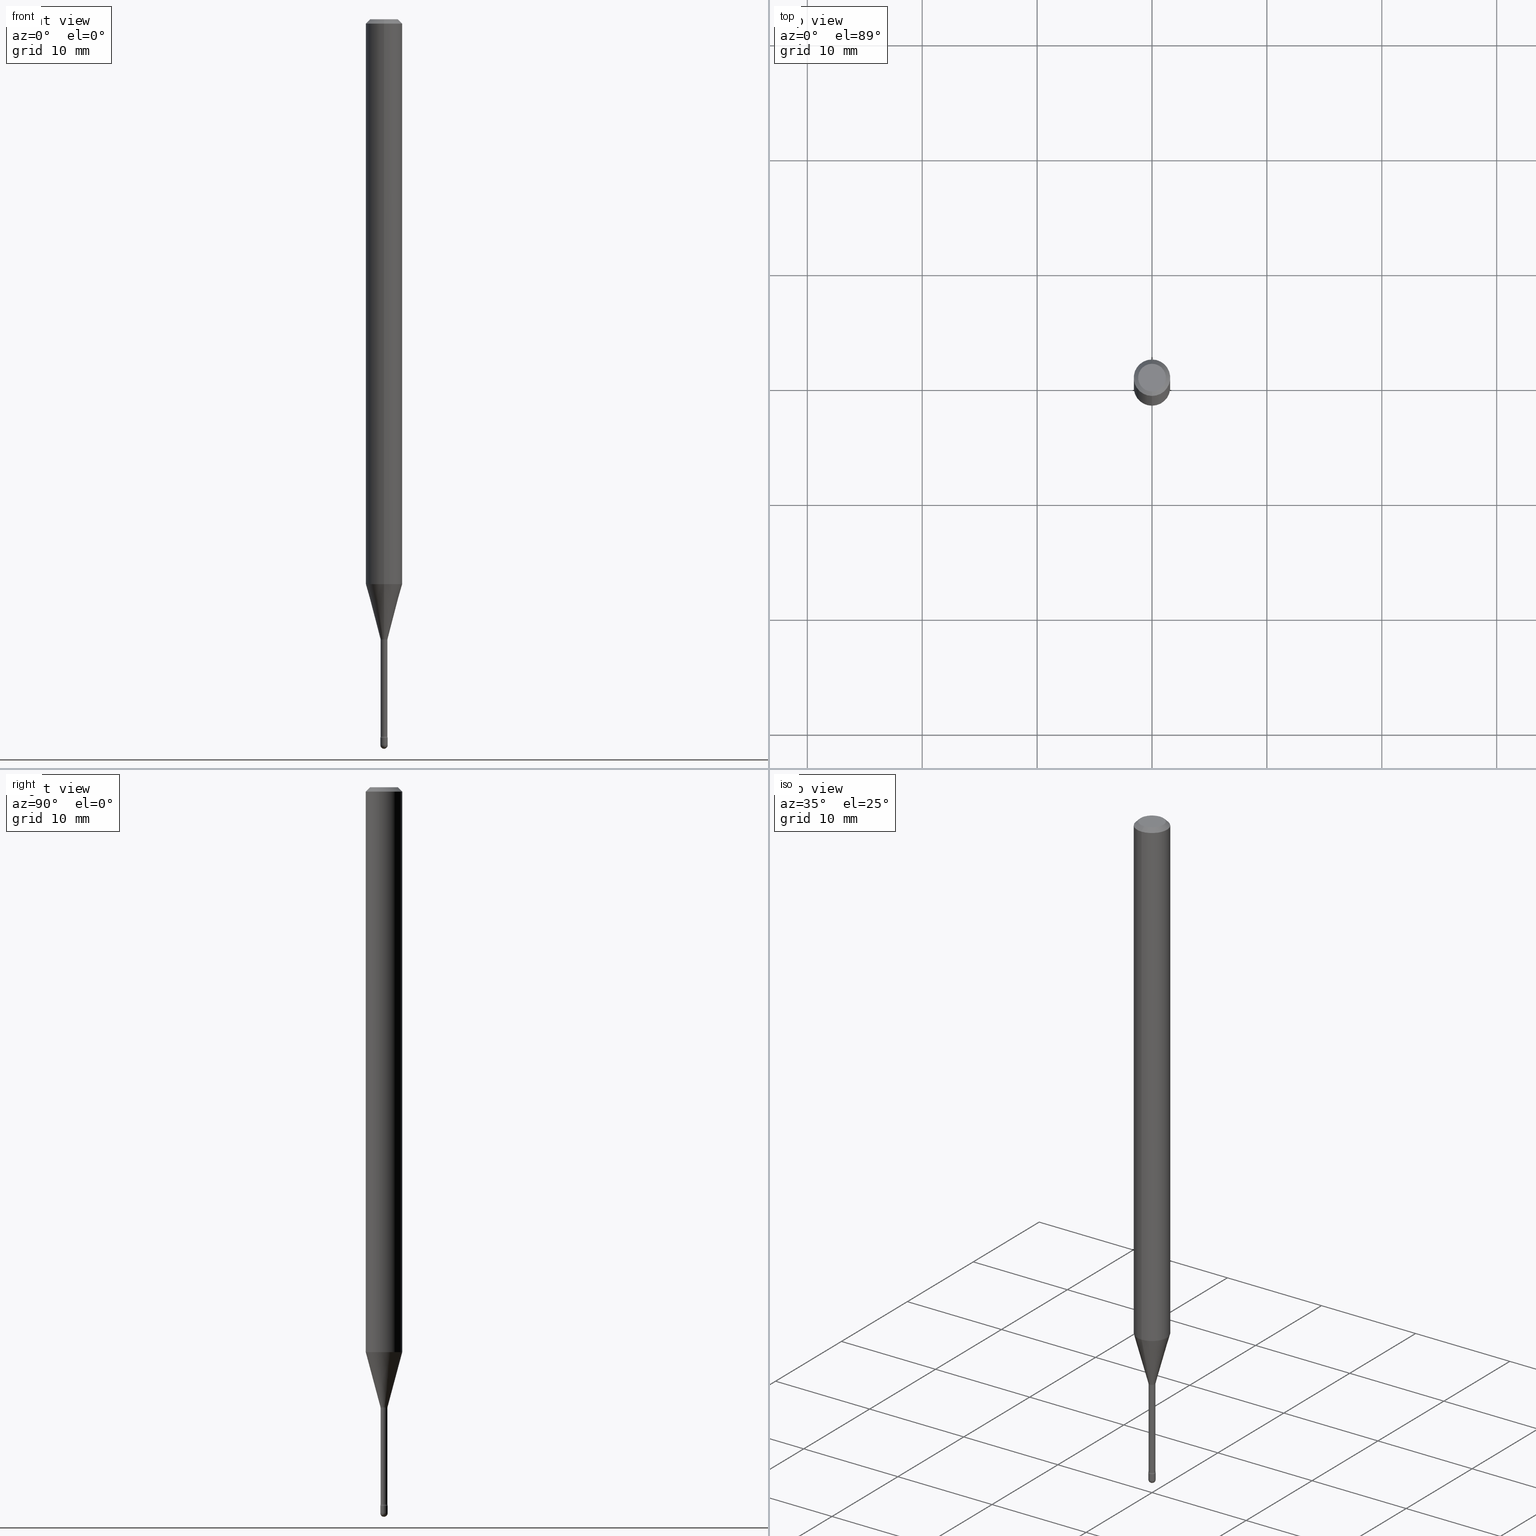
[diagram: canonical four-view strip — front | top / right | iso, engineering-drawing reading convention]
A machine part, canonical four-view strip (front | top / right | iso — engineering-drawing reading convention). The complete STEP part file that produces these views, byte-faithful:
ISO-10303-21;
HEADER;
FILE_DESCRIPTION (( 'STEP AP203' ),
    '1' );
FILE_NAME ('03916.STEP',
    '2024-04-09T21:09:01',
    ( '' ),
    ( '' ),
    'SwSTEP 2.0',
    'SolidWorks 2023',
    '' );
FILE_SCHEMA (( 'CONFIG_CONTROL_DESIGN' ));
ENDSEC;

DATA;
#1 =( NAMED_UNIT ( * ) PLANE_ANGLE_UNIT ( ) SI_UNIT ( $, .RADIAN. ) );
#2 = CARTESIAN_POINT ( 'NONE',  ( 1.900701818158871685E-16, 0.02674999999999146463, -2.457316251501201698 ) ) ;
#3 = EDGE_CURVE ( 'NONE', #254, #80, #475, .T. ) ;
#4 = CARTESIAN_POINT ( 'NONE',  ( 0.000000000000000000, 0.000000000000000000, 0.000000000000000000 ) ) ;
#5 = AXIS2_PLACEMENT_3D ( 'NONE', #447, #50, #501 ) ;
#6 = CARTESIAN_POINT ( 'NONE',  ( -3.773273898774340269E-16, -0.04749999999999999362, 8.310702070232110392E-17 ) ) ;
#7 = DIRECTION ( 'NONE',  ( -2.445404936488947864E-29, 3.491572803883325128E-15, 1.000000000000000000 ) ) ;
#8 = ORIENTED_EDGE ( 'NONE', *, *, #396, .F. ) ;
#9 = APPROVAL_DATE_TIME ( #93, #277 ) ;
#10 = ADVANCED_FACE ( 'NONE', ( #258 ), #30, .T. ) ;
#11 = PLANE ( 'NONE',  #5 ) ;
#12 = CLOSED_SHELL ( 'NONE', ( #496, #412, #186, #60, #403, #81, #125, #10, #529, #504, #343, #143, #363, #312 ) ) ;
#13 = AXIS2_PLACEMENT_3D ( 'NONE', #173, #39, #370 ) ;
#14 = VERTEX_POINT ( 'NONE', #348 ) ;
#15 = AXIS2_PLACEMENT_3D ( 'NONE', #176, #483, #397 ) ;
#16 = DIRECTION ( 'NONE',  ( -2.445404936488947864E-29, 3.491572803883325128E-15, 1.000000000000000000 ) ) ;
#17 = ORIENTED_EDGE ( 'NONE', *, *, #108, .T. ) ;
#18 = SPHERICAL_SURFACE ( 'NONE', #367, 0.01249999999999996947 ) ;
#19 = ORIENTED_EDGE ( 'NONE', *, *, #440, .F. ) ;
#20 = EDGE_CURVE ( 'NONE', #405, #14, #300, .T. ) ;
#21 = DIRECTION ( 'NONE',  ( 1.000000000000000000, -6.982962677686294321E-15, 0.000000000000000000 ) ) ;
#22 = ORIENTED_EDGE ( 'NONE', *, *, #555, .T. ) ;
#23 = AXIS2_PLACEMENT_3D ( 'NONE', #79, #416, #21 ) ;
#24 = DIRECTION ( 'NONE',  ( -2.445468806185136597E-29, 3.491481338843145583E-15, 1.000000000000000000 ) ) ;
#25 = VERTEX_POINT ( 'NONE', #208 ) ;
#26 = CARTESIAN_POINT ( 'NONE',  ( 0.01250000000000000243, -8.727830476773153796E-15, -2.487500000000000266 ) ) ;
#27 = ORIENTED_EDGE ( 'NONE', *, *, #187, .F. ) ;
#28 = DIRECTION ( 'NONE',  ( -2.445404936488947864E-29, 3.491572803883325128E-15, 1.000000000000000000 ) ) ;
#29 = EDGE_CURVE ( 'NONE', #405, #150, #128, .T. ) ;
#30 = CYLINDRICAL_SURFACE ( 'NONE', #264, 0.06250000000000000000 ) ;
#31 = CIRCLE ( 'NONE', #509, 0.01500000000000002373 ) ;
#32 = APPROVAL_PERSON_ORGANIZATION ( #274, #277, #493 ) ;
#33 = CARTESIAN_POINT ( 'NONE',  ( -0.01250000000000000243, -8.551725601332063255E-15, -2.487500000000000266 ) ) ;
#34 = ORIENTED_EDGE ( 'NONE', *, *, #396, .T. ) ;
#35 = PERSON_AND_ORGANIZATION_ROLE ( 'design_owner' ) ;
#36 = CARTESIAN_POINT ( 'NONE',  ( -1.867942516280478556E-16, -0.02675000000000862452, -2.457316251501201698 ) ) ;
#37 = EDGE_CURVE ( 'NONE', #490, #425, #199, .T. ) ;
#38 = CALENDAR_DATE ( 2024, 9, 4 ) ;
#39 = DIRECTION ( 'NONE',  ( -2.445468806185136597E-29, 3.491481338843145583E-15, 1.000000000000000000 ) ) ;
#40 = CONICAL_SURFACE ( 'NONE', #357, 0.01226111260566398534, 0.2617993877991499074 ) ;
#41 = AXIS2_PLACEMENT_3D ( 'NONE', #148, #59, #319 ) ;
#42 = CALENDAR_DATE ( 2024, 9, 4 ) ;
#43 = CIRCLE ( 'NONE', #15, 0.06250000000000000000 ) ;
#44 = FACE_OUTER_BOUND ( 'NONE', #346, .T. ) ;
#45 = DIRECTION ( 'NONE',  ( -6.982962677686266711E-15, -1.000000000000000000, 3.491572803883325128E-15 ) ) ;
#46 = DIRECTION ( 'NONE',  ( 1.000000000000000000, -6.982962677686267499E-15, 4.876176775795936353E-29 ) ) ;
#47 = AXIS2_PLACEMENT_3D ( 'NONE', #383, #470, #252 ) ;
#48 = DIRECTION ( 'NONE',  ( -6.982962677686265922E-15, -1.000000000000000000, 0.000000000000000000 ) ) ;
#49 = ORIENTED_EDGE ( 'NONE', *, *, #269, .F. ) ;
#50 = DIRECTION ( 'NONE',  ( -2.445404936488947583E-29, 3.491572803883325128E-15, 1.000000000000000000 ) ) ;
#51 = ORIENTED_EDGE ( 'NONE', *, *, #332, .T. ) ;
#52 = CC_DESIGN_DATE_AND_TIME_ASSIGNMENT ( #222, #349, ( #328 ) ) ;
#53 = ORIENTED_EDGE ( 'NONE', *, *, #29, .F. ) ;
#54 = CARTESIAN_POINT ( 'NONE',  ( -0.01250000000000000069, -8.551725601332063255E-15, -2.462000000000000188 ) ) ;
#55 = VECTOR ( 'NONE', #217, 39.37007874015748143 ) ;
#56 = VECTOR ( 'NONE', #282, 39.37007874015748143 ) ;
#57 = VERTEX_POINT ( 'NONE', #118 ) ;
#58 = LOCAL_TIME ( 17, 9, 1.000000000000000000, #172 ) ;
#59 = DIRECTION ( 'NONE',  ( -2.445404936488947864E-29, 3.491572803883325128E-15, 1.000000000000000000 ) ) ;
#60 = ADVANCED_FACE ( 'NONE', ( #293 ), #316, .T. ) ;
#61 = ORIENTED_EDGE ( 'NONE', *, *, #562, .T. ) ;
#62 = DIRECTION ( 'NONE',  ( 6.982962677686265922E-15, 1.000000000000000000, 0.000000000000000000 ) ) ;
#63 = ORIENTED_EDGE ( 'NONE', *, *, #3, .F. ) ;
#64 = DIRECTION ( 'NONE',  ( -2.445468806185136877E-29, 3.491481338843145188E-15, 1.000000000000000000 ) ) ;
#65 = VERTEX_POINT ( 'NONE', #177 ) ;
#66 = CIRCLE ( 'NONE', #480, 0.01250000000000000243 ) ;
#67 = VECTOR ( 'NONE', #304, 39.37007874015748143 ) ;
#68 = DIRECTION ( 'NONE',  ( -6.982962677686265133E-15, -1.000000000000000000, 3.491572803883322367E-15 ) ) ;
#69 = VERTEX_POINT ( 'NONE', #305 ) ;
#70 = DIMENSIONAL_EXPONENTS ( 1.000000000000000000, 0.000000000000000000, 0.000000000000000000, 0.000000000000000000, 0.000000000000000000, 0.000000000000000000, 0.000000000000000000 ) ;
#71 = EDGE_CURVE ( 'NONE', #190, #80, #142, .T. ) ;
#72 = DIRECTION ( 'NONE',  ( -2.445404936488947864E-29, 3.491572803883325128E-15, 1.000000000000000000 ) ) ;
#73 = ORIENTED_EDGE ( 'NONE', *, *, #221, .F. ) ;
#74 = CARTESIAN_POINT ( 'NONE',  ( 6.083103655385528181E-29, -8.685059830372324987E-15, -2.487500000000000266 ) ) ;
#75 = DIRECTION ( 'NONE',  ( -6.982962677686265922E-15, -1.000000000000000000, 3.491572803883324339E-15 ) ) ;
#76 = AXIS2_PLACEMENT_3D ( 'NONE', #267, #179, #45 ) ;
#77 = CIRCLE ( 'NONE', #85, 0.01175000000000009544 ) ;
#78 = AXIS2_PLACEMENT_3D ( 'NONE', #528, #224, #131 ) ;
#79 = CARTESIAN_POINT ( 'NONE',  ( 6.020744200827806517E-29, -8.596027056231825938E-15, -2.462000000000000188 ) ) ;
#80 = VERTEX_POINT ( 'NONE', #395 ) ;
#81 = ADVANCED_FACE ( 'NONE', ( #391 ), #40, .T. ) ;
#82 = MECHANICAL_CONTEXT ( 'NONE', #256, 'mechanical' ) ;
#83 = DIRECTION ( 'NONE',  ( -6.982962677686266711E-15, -1.000000000000000000, 3.491572803883325128E-15 ) ) ;
#84 = CARTESIAN_POINT ( 'NONE',  ( 4.364351673553919652E-16, 0.06249999999999995143, -0.01500000000000030129 ) ) ;
#85 = AXIS2_PLACEMENT_3D ( 'NONE', #159, #380, #123 ) ;
#86 = PERSON_AND_ORGANIZATION ( #326, #302 ) ;
#87 = CC_DESIGN_APPROVAL ( #430, ( #538 ) ) ;
#88 = EDGE_CURVE ( 'NONE', #80, #69, #418, .T. ) ;
#89 = DIRECTION ( 'NONE',  ( -2.445404936488948144E-29, 3.491572803883325128E-15, 1.000000000000000000 ) ) ;
#90 = EDGE_CURVE ( 'NONE', #490, #235, #136, .T. ) ;
#91 = APPROVAL_STATUS ( 'not_yet_approved' ) ;
#92 = DIRECTION ( 'NONE',  ( -6.982962677686266711E-15, -1.000000000000000000, 3.491572803883325128E-15 ) ) ;
#93 = DATE_AND_TIME ( #400, #482 ) ;
#94 = CARTESIAN_POINT ( 'NONE',  ( 5.201314645051534707E-29, -7.426487322454159879E-15, -2.126974787463811190 ) ) ;
#95 = CLOSED_SHELL ( 'NONE', ( #169, #463, #372, #253, #104 ) ) ;
#96 = CIRCLE ( 'NONE', #47, 0.01249999999999996947 ) ;
#97 = DIRECTION ( 'NONE',  ( -6.982962677686266711E-15, -1.000000000000000000, 3.491572803883325128E-15 ) ) ;
#98 = EDGE_CURVE ( 'NONE', #425, #14, #499, .T. ) ;
#99 = ORIENTED_EDGE ( 'NONE', *, *, #161, .F. ) ;
#100 = DIRECTION ( 'NONE',  ( -2.445404936488947864E-29, 3.491572803883325128E-15, 1.000000000000000000 ) ) ;
#101 = ORIENTED_EDGE ( 'NONE', *, *, #71, .F. ) ;
#102 = DIRECTION ( 'NONE',  ( -6.982962677686265133E-15, -1.000000000000000000, 3.491572803883322367E-15 ) ) ;
#103 = ORIENTED_EDGE ( 'NONE', *, *, #387, .F. ) ;
#104 = ADVANCED_FACE ( 'NONE', ( #354 ), #140, .T. ) ;
#105 = CALENDAR_DATE ( 2024, 9, 4 ) ;
#106 = DIRECTION ( 'NONE',  ( 1.000000000000000000, -6.982962677686265922E-15, 4.883557194083112340E-29 ) ) ;
#107 = VECTOR ( 'NONE', #298, 39.37007874015748143 ) ;
#108 = EDGE_CURVE ( 'NONE', #65, #57, #174, .T. ) ;
#109 = AXIS2_PLACEMENT_3D ( 'NONE', #237, #404, #97 ) ;
#110 = ORIENTED_EDGE ( 'NONE', *, *, #205, .T. ) ;
#111 = CC_DESIGN_APPROVAL ( #527, ( #328 ) ) ;
#112 = DIRECTION ( 'NONE',  ( 1.000000000000000000, -6.982962677686294321E-15, 0.000000000000000000 ) ) ;
#113 = EDGE_LOOP ( 'NONE', ( #429, #214, #154, #448 ) ) ;
#114 = EDGE_CURVE ( 'NONE', #168, #511, #66, .T. ) ;
#115 = FACE_OUTER_BOUND ( 'NONE', #450, .T. ) ;
#116 = ORIENTED_EDGE ( 'NONE', *, *, #469, .F. ) ;
#117 = CARTESIAN_POINT ( 'NONE',  ( 3.316907271900976096E-16, 0.04749999999999999362, 3.181564752009666869E-17 ) ) ;
#118 = CARTESIAN_POINT ( 'NONE',  ( 8.881784197007250624E-17, 0.01249999999999137738, -2.462000000000000188 ) ) ;
#119 = AXIS2_PLACEMENT_3D ( 'NONE', #457, #7, #272 ) ;
#120 = CC_DESIGN_DATE_AND_TIME_ASSIGNMENT ( #451, #230, ( #130 ) ) ;
#121 = DIRECTION ( 'NONE',  ( -2.445468806185136597E-29, 3.491481338843145583E-15, 1.000000000000000000 ) ) ;
#122 = ORIENTED_EDGE ( 'NONE', *, *, #269, .T. ) ;
#123 = DIRECTION ( 'NONE',  ( -6.982962677686265922E-15, -1.000000000000000000, 0.000000000000000000 ) ) ;
#124 = EDGE_LOOP ( 'NONE', ( #249, #333 ) ) ;
#125 = ADVANCED_FACE ( 'NONE', ( #44 ), #552, .T. ) ;
#126 = DIRECTION ( 'NONE',  ( -2.445404936488948144E-29, 3.491572803883325128E-15, 1.000000000000000000 ) ) ;
#127 = ORIENTED_EDGE ( 'NONE', *, *, #521, .T. ) ;
#128 = CIRCLE ( 'NONE', #366, 0.01499999999999995087 ) ;
#129 = CIRCLE ( 'NONE', #23, 0.01250000000000000069 ) ;
#130 = SECURITY_CLASSIFICATION ( '', '', #135 ) ;
#131 = DIRECTION ( 'NONE',  ( -6.982962677686265922E-15, -1.000000000000000000, 4.370956789862821150E-15 ) ) ;
#132 = DIRECTION ( 'NONE',  ( -2.445404936488947864E-29, 3.491572803883325128E-15, 1.000000000000000000 ) ) ;
#133 =( NAMED_UNIT ( * ) SI_UNIT ( $, .STERADIAN. ) SOLID_ANGLE_UNIT ( ) );
#134 = FACE_OUTER_BOUND ( 'NONE', #537, .T. ) ;
#135 = SECURITY_CLASSIFICATION_LEVEL ( 'unclassified' ) ;
#136 = LINE ( 'NONE', #356, #146 ) ;
#137 = AXIS2_PLACEMENT_3D ( 'NONE', #94, #566, #48 ) ;
#138 = AXIS2_PLACEMENT_3D ( 'NONE', #197, #540, #102 ) ;
#139 = AXIS2_PLACEMENT_3D ( 'NONE', #419, #306, #434 ) ;
#140 = CYLINDRICAL_SURFACE ( 'NONE', #182, 0.01250000000000000243 ) ;
#141 = LENGTH_MEASURE_WITH_UNIT ( LENGTH_MEASURE( 0.02539999999999999897 ), #303 );
#142 = LINE ( 'NONE', #394, #55 ) ;
#143 = ADVANCED_FACE ( 'NONE', ( #477 ), #280, .F. ) ;
#144 = CARTESIAN_POINT ( 'NONE',  ( 4.440892098501098492E-16, 0.06249999999999323458, -1.935598421515880352 ) ) ;
#145 = EDGE_CURVE ( 'NONE', #65, #425, #442, .T. ) ;
#146 = VECTOR ( 'NONE', #438, 39.37007874015748854 ) ;
#147 = AXIS2_PLACEMENT_3D ( 'NONE', #484, #398, #92 ) ;
#148 = CARTESIAN_POINT ( 'NONE',  ( 5.201450494285011202E-29, -7.426292778619762925E-15, -2.126974787463811190 ) ) ;
#149 = CIRCLE ( 'NONE', #78, 0.06250000000000000000 ) ;
#150 = VERTEX_POINT ( 'NONE', #223 ) ;
#151 = DIRECTION ( 'NONE',  ( -6.982962677686265133E-15, -1.000000000000000000, 0.000000000000000000 ) ) ;
#152 = ORIENTED_EDGE ( 'NONE', *, *, #108, .F. ) ;
#153 = CARTESIAN_POINT ( 'NONE',  ( 6.083103655385528181E-29, -8.685059830372324987E-15, -2.487500000000000266 ) ) ;
#154 = ORIENTED_EDGE ( 'NONE', *, *, #20, .T. ) ;
#155 = COORDINATED_UNIVERSAL_TIME_OFFSET ( 5, 0, .BEHIND. ) ;
#156 = CARTESIAN_POINT ( 'NONE',  ( 6.020744200827806517E-29, -8.596027056231825938E-15, -2.462000000000000188 ) ) ;
#157 = CIRCLE ( 'NONE', #119, 0.01226111260566398534 ) ;
#158 = ORIENTED_EDGE ( 'NONE', *, *, #203, .F. ) ;
#159 = CARTESIAN_POINT ( 'NONE',  ( 6.009133291935555203E-29, -8.579898594282114393E-15, -2.457316251501201698 ) ) ;
#160 = ORIENTED_EDGE ( 'NONE', *, *, #29, .T. ) ;
#161 = EDGE_CURVE ( 'NONE', #215, #254, #489, .T. ) ;
#162 = EDGE_CURVE ( 'NONE', #215, #69, #225, .T. ) ;
#163 = CARTESIAN_POINT ( 'NONE',  ( 1.900701818158787868E-16, 0.02674999999999257139, -2.126974787463811190 ) ) ;
#164 = DIRECTION ( 'NONE',  ( -1.000000000000000000, 6.982962677686266711E-15, -4.883557194083112901E-29 ) ) ;
#165 = ORIENTED_EDGE ( 'NONE', *, *, #555, .F. ) ;
#166 = AXIS2_PLACEMENT_3D ( 'NONE', #407, #16, #491 ) ;
#167 = FACE_OUTER_BOUND ( 'NONE', #323, .T. ) ;
#168 = VERTEX_POINT ( 'NONE', #181 ) ;
#169 = ADVANCED_FACE ( 'NONE', ( #313 ), #263, .T. ) ;
#170 = LINE ( 'NONE', #334, #472 ) ;
#171 = CARTESIAN_POINT ( 'NONE',  ( -1.169113584055446105E-44, 1.669184350826100908E-30, 4.780733988912460139E-16 ) ) ;
#172 = COORDINATED_UNIVERSAL_TIME_OFFSET ( 5, 0, .BEHIND. ) ;
#173 = CARTESIAN_POINT ( 'NONE',  ( 6.083103655385528181E-29, -8.685059830372324987E-15, -2.487500000000000266 ) ) ;
#174 = CIRCLE ( 'NONE', #191, 0.01499999999999995087 ) ;
#175 = CIRCLE ( 'NONE', #561, 0.01249999999999996947 ) ;
#176 = CARTESIAN_POINT ( 'NONE',  ( 3.668107404733441729E-31, -5.237359205825016486E-17, -0.01500000000000008271 ) ) ;
#177 = CARTESIAN_POINT ( 'NONE',  ( 8.615330671097246098E-17, 0.01174999999999151550, -2.457316251501201698 ) ) ;
#178 = PERSON_AND_ORGANIZATION ( #326, #302 ) ;
#179 = DIRECTION ( 'NONE',  ( -2.445404936488947864E-29, 3.491572803883325128E-15, 1.000000000000000000 ) ) ;
#180 = PRODUCT_RELATED_PRODUCT_CATEGORY ( 'detail', '', ( #344 ) ) ;
#181 = CARTESIAN_POINT ( 'NONE',  ( 8.728703347113906385E-17, 0.01249999999999130106, -2.487500000000000266 ) ) ;
#182 = AXIS2_PLACEMENT_3D ( 'NONE', #487, #231, #46 ) ;
#183 = AXIS2_PLACEMENT_3D ( 'NONE', #156, #330, #112 ) ;
#184 = CARTESIAN_POINT ( 'NONE',  ( 0.000000000000000000, 0.000000000000000000, 0.000000000000000000 ) ) ;
#185 = DIRECTION ( 'NONE',  ( -2.445468806185136597E-29, 3.491481338843145583E-15, 1.000000000000000000 ) ) ;
#186 = ADVANCED_FACE ( 'NONE', ( #134 ), #500, .F. ) ;
#187 = EDGE_CURVE ( 'NONE', #511, #495, #219, .T. ) ;
#188 = CARTESIAN_POINT ( 'NONE',  ( -1.867942516280555963E-16, -0.02675000000000742756, -2.126974787463811190 ) ) ;
#189 = DIRECTION ( 'NONE',  ( -1.000000000000000000, 6.982962677686265922E-15, -4.883557194083112340E-29 ) ) ;
#190 = VERTEX_POINT ( 'NONE', #239 ) ;
#191 = AXIS2_PLACEMENT_3D ( 'NONE', #2, #307, #435 ) ;
#192 = CIRCLE ( 'NONE', #229, 0.01250000000000000243 ) ;
#193 = LOCAL_TIME ( 17, 9, 1.000000000000000000, #517 ) ;
#194 = ORIENTED_EDGE ( 'NONE', *, *, #332, .F. ) ;
#195 = FACE_OUTER_BOUND ( 'NONE', #113, .T. ) ;
#196 = ORIENTED_EDGE ( 'NONE', *, *, #437, .F. ) ;
#197 = CARTESIAN_POINT ( 'NONE',  ( -1.169113584055446105E-44, 1.669184350826100908E-30, 4.780733988912460139E-16 ) ) ;
#198 = ORIENTED_EDGE ( 'NONE', *, *, #456, .F. ) ;
#199 = CIRCLE ( 'NONE', #338, 0.01500000000000002373 ) ;
#200 = CARTESIAN_POINT ( 'NONE',  ( 8.348877145187209524E-17, 0.01174999999999257541, -2.126974787463811190 ) ) ;
#201 = TOROIDAL_SURFACE ( 'NONE', #41, 0.02674999999999999947, 0.01500000000000001853 ) ;
#202 = ORIENTED_EDGE ( 'NONE', *, *, #431, .F. ) ;
#203 = EDGE_CURVE ( 'NONE', #65, #405, #317, .T. ) ;
#204 = DIRECTION ( 'NONE',  ( -6.982962677686265922E-15, -1.000000000000000000, 4.370956789862821150E-15 ) ) ;
#205 = EDGE_CURVE ( 'NONE', #206, #190, #232, .T. ) ;
#206 = VERTEX_POINT ( 'NONE', #275 ) ;
#207 = CARTESIAN_POINT ( 'NONE',  ( -8.204981146275419022E-17, -0.01175000000000867538, -2.457316251501201698 ) ) ;
#208 = CARTESIAN_POINT ( 'NONE',  ( 6.114206494393579661E-29, -8.727937942858396428E-15, -2.500000000000000000 ) ) ;
#209 = DIRECTION ( 'NONE',  ( -6.982962677686265133E-15, -1.000000000000000000, 0.000000000000000000 ) ) ;
#210 = ORIENTED_EDGE ( 'NONE', *, *, #456, .T. ) ;
#211 = EDGE_CURVE ( 'NONE', #57, #150, #445, .T. ) ;
#212 = CIRCLE ( 'NONE', #427, 0.01250000000000000069 ) ;
#213 = DIRECTION ( 'NONE',  ( 1.000000000000000000, -6.982962677686292743E-15, 0.000000000000000000 ) ) ;
#214 = ORIENTED_EDGE ( 'NONE', *, *, #203, .T. ) ;
#215 = VERTEX_POINT ( 'NONE', #452 ) ;
#216 = APPROVAL_DATE_TIME ( #565, #430 ) ;
#217 = DIRECTION ( 'NONE',  ( -2.445404936488948144E-29, 3.491572803883325128E-15, 1.000000000000000000 ) ) ;
#218 = EDGE_LOOP ( 'NONE', ( #194, #233, #321, #73 ) ) ;
#219 = CIRCLE ( 'NONE', #13, 0.01250000000000000243 ) ;
#220 =( GEOMETRIC_REPRESENTATION_CONTEXT ( 3 ) GLOBAL_UNCERTAINTY_ASSIGNED_CONTEXT ( ( #361 ) ) GLOBAL_UNIT_ASSIGNED_CONTEXT ( ( #443, #1, #133 ) ) REPRESENTATION_CONTEXT ( 'NONE', 'WORKASPACE' ) );
#221 = EDGE_CURVE ( 'NONE', #206, #14, #31, .T. ) ;
#222 = DATE_AND_TIME ( #42, #58 ) ;
#223 = CARTESIAN_POINT ( 'NONE',  ( -8.728703347101794904E-17, -0.01250000000000857023, -2.462000000000000188 ) ) ;
#224 = DIRECTION ( 'NONE',  ( -2.445404936488947864E-29, 3.491572803883325128E-15, 1.000000000000000000 ) ) ;
#225 = LINE ( 'NONE', #84, #67 ) ;
#226 = APPROVAL_ROLE ( '' ) ;
#227 = CARTESIAN_POINT ( 'NONE',  ( 6.083103655385528181E-29, -8.685059830372324987E-15, -2.487500000000000266 ) ) ;
#228 = CC_DESIGN_PERSON_AND_ORGANIZATION_ASSIGNMENT ( #86, #539, ( #130 ) ) ;
#229 = AXIS2_PLACEMENT_3D ( 'NONE', #288, #24, #213 ) ;
#230 = DATE_TIME_ROLE ( 'classification_date' ) ;
#231 = DIRECTION ( 'NONE',  ( -2.445468806185136597E-29, 3.491481338843145583E-15, 1.000000000000000000 ) ) ;
#232 = LINE ( 'NONE', #322, #56 ) ;
#233 = ORIENTED_EDGE ( 'NONE', *, *, #37, .T. ) ;
#234 = DIRECTION ( 'NONE',  ( -6.982962677686265133E-15, -1.000000000000000000, 0.000000000000000000 ) ) ;
#235 = VERTEX_POINT ( 'NONE', #144 ) ;
#236 = AXIS2_PLACEMENT_3D ( 'NONE', #117, #426, #461 ) ;
#237 = CARTESIAN_POINT ( 'NONE',  ( 2.023088420244365235E-45, -2.889458443354846225E-31, -8.274268748213682290E-17 ) ) ;
#238 = EDGE_LOOP ( 'NONE', ( #49, #287, #284, #515 ) ) ;
#239 = CARTESIAN_POINT ( 'NONE',  ( -4.364351673553443378E-16, -0.06250000000000677236, -1.935598421515879686 ) ) ;
#240 = EDGE_LOOP ( 'NONE', ( #247, #295, #335, #198, #502 ) ) ;
#241 = DIRECTION ( 'NONE',  ( 6.982962677686266711E-15, 1.000000000000000000, 0.000000000000000000 ) ) ;
#242 = ORIENTED_EDGE ( 'NONE', *, *, #90, .T. ) ;
#243 = EDGE_CURVE ( 'NONE', #25, #168, #175, .T. ) ;
#244 = FACE_OUTER_BOUND ( 'NONE', #549, .T. ) ;
#245 = AXIS2_PLACEMENT_3D ( 'NONE', #290, #467, #68 ) ;
#246 = CC_DESIGN_APPROVAL ( #277, ( #130 ) ) ;
#247 = ORIENTED_EDGE ( 'NONE', *, *, #114, .T. ) ;
#248 = CARTESIAN_POINT ( 'NONE',  ( -0.01250000000000000243, 8.881784197001254049E-17, -6.148668862818633278E-31 ) ) ;
#249 = ORIENTED_EDGE ( 'NONE', *, *, #421, .F. ) ;
#250 = CARTESIAN_POINT ( 'NONE',  ( -8.881784196995158866E-17, -0.01250000000000867084, -2.487500000000000266 ) ) ;
#251 = ORIENTED_EDGE ( 'NONE', *, *, #37, .F. ) ;
#252 = DIRECTION ( 'NONE',  ( -7.105427357601001070E-15, -1.000000000000000000, 0.000000000000000000 ) ) ;
#253 = ADVANCED_FACE ( 'NONE', ( #360 ), #18, .T. ) ;
#254 = VERTEX_POINT ( 'NONE', #6 ) ;
#255 = AXIS2_PLACEMENT_3D ( 'NONE', #533, #100, #324 ) ;
#256 = APPLICATION_CONTEXT ( 'configuration controlled 3d designs of mechanical parts and assemblies' ) ;
#257 = COORDINATED_UNIVERSAL_TIME_OFFSET ( 5, 0, .BEHIND. ) ;
#258 = FACE_OUTER_BOUND ( 'NONE', #379, .T. ) ;
#259 = PERSON_AND_ORGANIZATION ( #326, #302 ) ;
#260 = DIRECTION ( 'NONE',  ( -6.982962677686265922E-15, -1.000000000000000000, 0.000000000000000000 ) ) ;
#261 = CC_DESIGN_PERSON_AND_ORGANIZATION_ASSIGNMENT ( #479, #522, ( #538 ) ) ;
#262 = PERSON_AND_ORGANIZATION_ROLE ( 'creator' ) ;
#263 = CYLINDRICAL_SURFACE ( 'NONE', #309, 0.01250000000000000243 ) ;
#264 = AXIS2_PLACEMENT_3D ( 'NONE', #171, #513, #75 ) ;
#265 = AXIS2_PLACEMENT_3D ( 'NONE', #512, #299, #378 ) ;
#266 = DIRECTION ( 'NONE',  ( 0.000000000000000000, 0.000000000000000000, 1.000000000000000000 ) ) ;
#267 = CARTESIAN_POINT ( 'NONE',  ( 2.023088420244365235E-45, -2.889458443354846225E-31, -8.274268748213682290E-17 ) ) ;
#268 = CALENDAR_DATE ( 2024, 9, 4 ) ;
#269 = EDGE_CURVE ( 'NONE', #254, #215, #392, .T. ) ;
#270 = APPROVAL_STATUS ( 'not_yet_approved' ) ;
#271 = DIRECTION ( 'NONE',  ( -6.982962677686265922E-15, -1.000000000000000000, 0.000000000000000000 ) ) ;
#272 = DIRECTION ( 'NONE',  ( -6.982962677686265922E-15, -1.000000000000000000, 0.000000000000000000 ) ) ;
#273 = EDGE_LOOP ( 'NONE', ( #196, #415, #460, #210, #8 ) ) ;
#274 = PERSON_AND_ORGANIZATION ( #326, #302 ) ;
#275 = CARTESIAN_POINT ( 'NONE',  ( -8.561889171220828591E-17, -0.01226111260567139781, -2.123092501787273267 ) ) ;
#276 = ORIENTED_EDGE ( 'NONE', *, *, #310, .F. ) ;
#277 = APPROVAL ( #270, 'UNSPECIFIED' ) ;
#278 = DIRECTION ( 'NONE',  ( -2.438088387897960049E-29, 3.491481338843145188E-15, 1.000000000000000000 ) ) ;
#279 = ORIENTED_EDGE ( 'NONE', *, *, #506, .F. ) ;
#280 = TOROIDAL_SURFACE ( 'NONE', #147, 0.02675000000000004458, 0.01499999999999995087 ) ;
#281 = AXIS2_PLACEMENT_3D ( 'NONE', #530, #481, #271 ) ;
#282 = DIRECTION ( 'NONE',  ( -1.807323732225327773E-15, -0.2588190451025178529, 0.9659258262890690894 ) ) ;
#283 = LOCAL_TIME ( 17, 9, 1.000000000000000000, #257 ) ;
#284 = ORIENTED_EDGE ( 'NONE', *, *, #88, .T. ) ;
#285 = FACE_OUTER_BOUND ( 'NONE', #545, .T. ) ;
#286 = APPLICATION_CONTEXT ( 'configuration controlled 3d designs of mechanical parts and assemblies' ) ;
#287 = ORIENTED_EDGE ( 'NONE', *, *, #3, .T. ) ;
#288 = CARTESIAN_POINT ( 'NONE',  ( 6.083103655385528181E-29, -8.685059830372324987E-15, -2.487500000000000266 ) ) ;
#289 = ORIENTED_EDGE ( 'NONE', *, *, #243, .F. ) ;
#290 = CARTESIAN_POINT ( 'NONE',  ( -1.169113584055446105E-44, 1.669184350826100908E-30, 4.780733988912460139E-16 ) ) ;
#291 = CIRCLE ( 'NONE', #526, 0.01250000000000000243 ) ;
#292 = APPROVAL_PERSON_ORGANIZATION ( #259, #430, #393 ) ;
#293 = FACE_OUTER_BOUND ( 'NONE', #238, .T. ) ;
#294 = CARTESIAN_POINT ( 'NONE',  ( 4.733321935035148342E-29, -6.758282807804339113E-15, -1.935598421515879908 ) ) ;
#295 = ORIENTED_EDGE ( 'NONE', *, *, #437, .T. ) ;
#296 = CC_DESIGN_PERSON_AND_ORGANIZATION_ASSIGNMENT ( #485, #35, ( #344 ) ) ;
#297 = FACE_OUTER_BOUND ( 'NONE', #471, .T. ) ;
#298 = DIRECTION ( 'NONE',  ( -4.851104656540964275E-15, -0.7071067811865500152, -0.7071067811865450192 ) ) ;
#299 = DIRECTION ( 'NONE',  ( -2.445404936488947864E-29, 3.491572803883325128E-15, 1.000000000000000000 ) ) ;
#300 = LINE ( 'NONE', #420, #308 ) ;
#301 = AXIS2_PLACEMENT_3D ( 'NONE', #424, #28, #473 ) ;
#302 = ORGANIZATION ( 'UNSPECIFIED', 'UNSPECIFIED', '' ) ;
#303 =( LENGTH_UNIT ( ) NAMED_UNIT ( * ) SI_UNIT ( $, .METRE. ) );
#304 = DIRECTION ( 'NONE',  ( 4.937700262164548042E-15, 0.7071067811865451302, -0.7071067811865499042 ) ) ;
#305 = CARTESIAN_POINT ( 'NONE',  ( 4.440892098501102436E-16, 0.06249999999999995143, -0.01500000000000030129 ) ) ;
#306 = DIRECTION ( 'NONE',  ( 2.445404936488947864E-29, -3.491572803883325128E-15, -1.000000000000000000 ) ) ;
#307 = DIRECTION ( 'NONE',  ( 1.000000000000000000, -7.105427357601001070E-15, 4.926316628665769458E-29 ) ) ;
#308 = VECTOR ( 'NONE', #433, 39.37007874015748143 ) ;
#309 = AXIS2_PLACEMENT_3D ( 'NONE', #4, #185, #359 ) ;
#310 = EDGE_CURVE ( 'NONE', #206, #490, #157, .T. ) ;
#311 = DIRECTION ( 'NONE',  ( 1.000000000000000000, 0.000000000000000000, 0.000000000000000000 ) ) ;
#312 = ADVANCED_FACE ( 'NONE', ( #449 ), #201, .F. ) ;
#313 = FACE_OUTER_BOUND ( 'NONE', #240, .T. ) ;
#314 = CARTESIAN_POINT ( 'NONE',  ( 3.668107404733441729E-31, -5.237359205825016486E-17, -0.01500000000000008271 ) ) ;
#315 = CARTESIAN_POINT ( 'NONE',  ( 6.083103655385528181E-29, -8.685059830372324987E-15, -2.487500000000000266 ) ) ;
#316 = CONICAL_SURFACE ( 'NONE', #409, 0.06250000000000000000, 0.7853981633974483900 ) ;
#317 = CIRCLE ( 'NONE', #255, 0.01175000000000009544 ) ;
#318 = COORDINATED_UNIVERSAL_TIME_OFFSET ( 5, 0, .BEHIND. ) ;
#319 = DIRECTION ( 'NONE',  ( -6.982962677686266711E-15, -1.000000000000000000, 3.491572803883325128E-15 ) ) ;
#320 = CC_DESIGN_PERSON_AND_ORGANIZATION_ASSIGNMENT ( #178, #353, ( #538 ) ) ;
#321 = ORIENTED_EDGE ( 'NONE', *, *, #98, .T. ) ;
#322 = CARTESIAN_POINT ( 'NONE',  ( -8.561889171220828591E-17, -0.01226111260567139781, -2.123092501787273267 ) ) ;
#323 = EDGE_LOOP ( 'NONE', ( #413, #122 ) ) ;
#324 = DIRECTION ( 'NONE',  ( -6.982962677686265922E-15, -1.000000000000000000, 0.000000000000000000 ) ) ;
#325 = ORIENTED_EDGE ( 'NONE', *, *, #88, .F. ) ;
#326 = PERSON ( 'UNSPECIFIED', 'UNSPECIFIED', 'UNSPECIFIED', ('UNSPECIFIED'), ('UNSPECIFIED'), ('UNSPECIFIED') ) ;
#327 = VECTOR ( 'NONE', #64, 39.37007874015748143 ) ;
#328 = PRODUCT_DEFINITION ( 'UNKNOWN', '', #538, #406 ) ;
#329 = CIRCLE ( 'NONE', #439, 0.01175000000000000350 ) ;
#330 = DIRECTION ( 'NONE',  ( -2.445468806185136597E-29, 3.491481338843145583E-15, 1.000000000000000000 ) ) ;
#331 = APPROVAL_PERSON_ORGANIZATION ( #563, #527, #226 ) ;
#332 = EDGE_CURVE ( 'NONE', #490, #206, #351, .T. ) ;
#333 = ORIENTED_EDGE ( 'NONE', *, *, #211, .F. ) ;
#334 = CARTESIAN_POINT ( 'NONE',  ( 0.01250000000000000243, -8.728703347107835853E-17, 6.095220969744921493E-31 ) ) ;
#335 = ORIENTED_EDGE ( 'NONE', *, *, #521, .F. ) ;
#336 = FACE_OUTER_BOUND ( 'NONE', #218, .T. ) ;
#337 = DIRECTION ( 'NONE',  ( 1.000000000000000000, -7.105427357601001070E-15, 4.926316628665769458E-29 ) ) ;
#338 = AXIS2_PLACEMENT_3D ( 'NONE', #163, #337, #508 ) ;
#339 = DIRECTION ( 'NONE',  ( 6.982962677686266711E-15, 1.000000000000000000, 0.000000000000000000 ) ) ;
#340 = CIRCLE ( 'NONE', #546, 0.06250000000000000000 ) ;
#341 = CONICAL_SURFACE ( 'NONE', #139, 0.06250000000000000000, 0.7853981633974483900 ) ;
#342 = ORIENTED_EDGE ( 'NONE', *, *, #310, .T. ) ;
#343 = ADVANCED_FACE ( 'NONE', ( #494 ), #11, .F. ) ;
#344 = PRODUCT ( '03916', '03916', '', ( #82 ) ) ;
#345 = CYLINDRICAL_SURFACE ( 'NONE', #245, 0.01175000000000004860 ) ;
#346 = EDGE_LOOP ( 'NONE', ( #381, #51, #110, #446 ) ) ;
#347 = LINE ( 'NONE', #514, #375 ) ;
#348 = CARTESIAN_POINT ( 'NONE',  ( -8.204981146276163510E-17, -0.01175000000000742985, -2.126974787463811190 ) ) ;
#349 = DATE_TIME_ROLE ( 'creation_date' ) ;
#350 = CARTESIAN_POINT ( 'NONE',  ( 6.009290239977978943E-29, -8.579673835752436969E-15, -2.457316251501201698 ) ) ;
#351 = CIRCLE ( 'NONE', #166, 0.01226111260566398534 ) ;
#352 = DIRECTION ( 'NONE',  ( -2.445468806185136597E-29, 3.491481338843145583E-15, 1.000000000000000000 ) ) ;
#353 = PERSON_AND_ORGANIZATION_ROLE ( 'creator' ) ;
#354 = FACE_OUTER_BOUND ( 'NONE', #273, .T. ) ;
#355 = APPLICATION_PROTOCOL_DEFINITION ( 'international standard', 'config_control_design', 1994, #256 ) ;
#356 = CARTESIAN_POINT ( 'NONE',  ( 8.712044494296330293E-17, 0.01226111260565657286, -2.123092501787273267 ) ) ;
#357 = AXIS2_PLACEMENT_3D ( 'NONE', #523, #476, #260 ) ;
#358 = AXIS2_PLACEMENT_3D ( 'NONE', #350, #132, #83 ) ;
#359 = DIRECTION ( 'NONE',  ( 1.000000000000000000, -6.982962677686267499E-15, 4.876176775795936353E-29 ) ) ;
#360 = FACE_OUTER_BOUND ( 'NONE', #551, .T. ) ;
#361 = UNCERTAINTY_MEASURE_WITH_UNIT (LENGTH_MEASURE( 1.000000000000000082E-05 ), #443, 'distance_accuracy_value', 'NONE');
#362 = SHAPE_DEFINITION_REPRESENTATION ( #390, #556 ) ;
#363 = ADVANCED_FACE ( 'NONE', ( #195 ), #368, .T. ) ;
#364 = PLANE ( 'NONE',  #536 ) ;
#365 = ORIENTED_EDGE ( 'NONE', *, *, #162, .T. ) ;
#366 = AXIS2_PLACEMENT_3D ( 'NONE', #36, #560, #505 ) ;
#367 = AXIS2_PLACEMENT_3D ( 'NONE', #315, #488, #241 ) ;
#368 = CYLINDRICAL_SURFACE ( 'NONE', #138, 0.01175000000000004860 ) ;
#369 = ORIENTED_EDGE ( 'NONE', *, *, #421, .T. ) ;
#370 = DIRECTION ( 'NONE',  ( 1.000000000000000000, -6.982962677686292743E-15, 0.000000000000000000 ) ) ;
#371 = ORIENTED_EDGE ( 'NONE', *, *, #205, .F. ) ;
#372 = ADVANCED_FACE ( 'NONE', ( #373 ), #364, .T. ) ;
#373 = FACE_OUTER_BOUND ( 'NONE', #547, .T. ) ;
#374 = ORIENTED_EDGE ( 'NONE', *, *, #114, .F. ) ;
#375 = VECTOR ( 'NONE', #126, 39.37007874015748143 ) ;
#376 = LINE ( 'NONE', #248, #327 ) ;
#377 = VERTEX_POINT ( 'NONE', #54 ) ;
#378 = DIRECTION ( 'NONE',  ( -6.982962677686265922E-15, -1.000000000000000000, 3.491572803883324339E-15 ) ) ;
#379 = EDGE_LOOP ( 'NONE', ( #543, #558, #468, #534 ) ) ;
#380 = DIRECTION ( 'NONE',  ( -2.445404936488947864E-29, 3.491572803883325128E-15, 1.000000000000000000 ) ) ;
#381 = ORIENTED_EDGE ( 'NONE', *, *, #90, .F. ) ;
#382 = AXIS2_PLACEMENT_3D ( 'NONE', #314, #525, #564 ) ;
#383 = CARTESIAN_POINT ( 'NONE',  ( 6.083103655385528181E-29, -8.685059830372324987E-15, -2.487500000000000266 ) ) ;
#384 = ORIENTED_EDGE ( 'NONE', *, *, #211, .T. ) ;
#385 = PLANE ( 'NONE',  #236 ) ;
#386 = EDGE_LOOP ( 'NONE', ( #152, #202, #160, #369 ) ) ;
#387 = EDGE_CURVE ( 'NONE', #14, #425, #329, .T. ) ;
#388 = APPROVAL_DATE_TIME ( #432, #527 ) ;
#389 = ORIENTED_EDGE ( 'NONE', *, *, #431, .T. ) ;
#390 = PRODUCT_DEFINITION_SHAPE ( 'NONE', 'NONE',  #328 ) ;
#391 = FACE_OUTER_BOUND ( 'NONE', #423, .T. ) ;
#392 = CIRCLE ( 'NONE', #109, 0.04749999999999999362 ) ;
#393 = APPROVAL_ROLE ( '' ) ;
#394 = CARTESIAN_POINT ( 'NONE',  ( -4.364351673553916201E-16, -0.06250000000000000000, 6.962966991339537851E-16 ) ) ;
#395 = CARTESIAN_POINT ( 'NONE',  ( -4.364351673553912750E-16, -0.06250000000000005551, -0.01499999999999986587 ) ) ;
#396 = EDGE_CURVE ( 'NONE', #377, #458, #464, .T. ) ;
#397 = DIRECTION ( 'NONE',  ( -6.982962677686265922E-15, -1.000000000000000000, 3.483106191921935554E-15 ) ) ;
#398 = DIRECTION ( 'NONE',  ( -2.445404936488947864E-29, 3.491572803883325128E-15, 1.000000000000000000 ) ) ;
#399 = VECTOR ( 'NONE', #89, 39.37007874015748143 ) ;
#400 = CALENDAR_DATE ( 2024, 9, 4 ) ;
#401 = CARTESIAN_POINT ( 'NONE',  ( 8.348877145181209251E-17, 0.01175000000000004860, 4.370474184456168299E-16 ) ) ;
#402 = ORIENTED_EDGE ( 'NONE', *, *, #387, .T. ) ;
#403 = ADVANCED_FACE ( 'NONE', ( #285 ), #553, .T. ) ;
#404 = DIRECTION ( 'NONE',  ( -2.445404936488947864E-29, 3.491572803883325128E-15, 1.000000000000000000 ) ) ;
#405 = VERTEX_POINT ( 'NONE', #207 ) ;
#406 = DESIGN_CONTEXT ( 'detailed design', #286, 'design' ) ;
#407 = CARTESIAN_POINT ( 'NONE',  ( 5.191820884493268703E-29, -7.412932039369052448E-15, -2.123092501787273267 ) ) ;
#408 = VERTEX_POINT ( 'NONE', #26 ) ;
#409 = AXIS2_PLACEMENT_3D ( 'NONE', #466, #520, #444 ) ;
#410 = TOROIDAL_SURFACE ( 'NONE', #301, 0.02674999999999999947, 0.01500000000000001853 ) ;
#411 = CARTESIAN_POINT ( 'NONE',  ( 6.020744200827806517E-29, -8.596027056231825938E-15, -2.462000000000000188 ) ) ;
#412 = ADVANCED_FACE ( 'NONE', ( #115 ), #345, .T. ) ;
#413 = ORIENTED_EDGE ( 'NONE', *, *, #161, .T. ) ;
#414 = DIRECTION ( 'NONE',  ( -2.445404936488947864E-29, 3.491572803883325128E-15, 1.000000000000000000 ) ) ;
#415 = ORIENTED_EDGE ( 'NONE', *, *, #187, .T. ) ;
#416 = DIRECTION ( 'NONE',  ( -2.445468806185136597E-29, 3.491481338843145583E-15, 1.000000000000000000 ) ) ;
#417 = ORIENTED_EDGE ( 'NONE', *, *, #243, .T. ) ;
#418 = CIRCLE ( 'NONE', #382, 0.06250000000000000000 ) ;
#419 = CARTESIAN_POINT ( 'NONE',  ( 3.668107404733441729E-31, -5.237359205825016486E-17, -0.01500000000000008271 ) ) ;
#420 = CARTESIAN_POINT ( 'NONE',  ( -8.204981146281395876E-17, -0.01175000000000004860, 5.190993793368752473E-16 ) ) ;
#421 = EDGE_CURVE ( 'NONE', #150, #57, #212, .T. ) ;
#422 = CARTESIAN_POINT ( 'NONE',  ( 0.01250000000000000069, -8.683314089702904272E-15, -2.462000000000000188 ) ) ;
#423 = EDGE_LOOP ( 'NONE', ( #342, #242, #165, #371 ) ) ;
#424 = CARTESIAN_POINT ( 'NONE',  ( 5.201450494285011202E-29, -7.426292778619762925E-15, -2.126974787463811190 ) ) ;
#425 = VERTEX_POINT ( 'NONE', #200 ) ;
#426 = DIRECTION ( 'NONE',  ( 2.445404936488947583E-29, -3.491572803883325128E-15, -1.000000000000000000 ) ) ;
#427 = AXIS2_PLACEMENT_3D ( 'NONE', #557, #548, #209 ) ;
#428 = LOCAL_TIME ( 17, 9, 1.000000000000000000, #318 ) ;
#429 = ORIENTED_EDGE ( 'NONE', *, *, #145, .F. ) ;
#430 = APPROVAL ( #441, 'UNSPECIFIED' ) ;
#431 = EDGE_CURVE ( 'NONE', #405, #65, #77, .T. ) ;
#432 = DATE_AND_TIME ( #268, #283 ) ;
#433 = DIRECTION ( 'NONE',  ( -2.445404936488948144E-29, 3.491572803883325128E-15, 1.000000000000000000 ) ) ;
#434 = DIRECTION ( 'NONE',  ( 6.982962677686265922E-15, 1.000000000000000000, -3.483106191921935554E-15 ) ) ;
#435 = DIRECTION ( 'NONE',  ( 7.105427357601001859E-15, 1.000000000000000000, 0.000000000000000000 ) ) ;
#436 = ORIENTED_EDGE ( 'NONE', *, *, #506, .T. ) ;
#437 = EDGE_CURVE ( 'NONE', #511, #377, #376, .T. ) ;
#438 = DIRECTION ( 'NONE',  ( 1.839019923739597554E-15, 0.2588190451025245697, 0.9659258262890670910 ) ) ;
#439 = AXIS2_PLACEMENT_3D ( 'NONE', #542, #497, #544 ) ;
#440 = EDGE_CURVE ( 'NONE', #408, #168, #291, .T. ) ;
#441 = APPROVAL_STATUS ( 'not_yet_approved' ) ;
#442 = LINE ( 'NONE', #401, #399 ) ;
#443 =( CONVERSION_BASED_UNIT ( 'INCH', #141 ) LENGTH_UNIT ( ) NAMED_UNIT ( #70 ) );
#444 = DIRECTION ( 'NONE',  ( 6.982962677686265922E-15, 1.000000000000000000, -3.483106191921935554E-15 ) ) ;
#445 = CIRCLE ( 'NONE', #454, 0.01250000000000000069 ) ;
#446 = ORIENTED_EDGE ( 'NONE', *, *, #486, .F. ) ;
#447 = CARTESIAN_POINT ( 'NONE',  ( 8.728703347113853383E-17, 0.01249999999999140514, -2.462000000000000188 ) ) ;
#448 = ORIENTED_EDGE ( 'NONE', *, *, #98, .F. ) ;
#449 = FACE_OUTER_BOUND ( 'NONE', #462, .T. ) ;
#450 = EDGE_LOOP ( 'NONE', ( #389, #541, #103, #498 ) ) ;
#451 = DATE_AND_TIME ( #105, #428 ) ;
#452 = CARTESIAN_POINT ( 'NONE',  ( 3.840629472727447874E-16, 0.04749999999999999362, -2.485923956665947374E-16 ) ) ;
#453 = ORIENTED_EDGE ( 'NONE', *, *, #221, .T. ) ;
#454 = AXIS2_PLACEMENT_3D ( 'NONE', #459, #414, #151 ) ;
#455 = CC_DESIGN_SECURITY_CLASSIFICATION ( #130, ( #538 ) ) ;
#456 = EDGE_CURVE ( 'NONE', #408, #458, #170, .T. ) ;
#457 = CARTESIAN_POINT ( 'NONE',  ( 5.191820884493268703E-29, -7.412932039369052448E-15, -2.123092501787273267 ) ) ;
#458 = VERTEX_POINT ( 'NONE', #422 ) ;
#459 = CARTESIAN_POINT ( 'NONE',  ( 6.020586953635790886E-29, -8.596252243160746735E-15, -2.462000000000000188 ) ) ;
#460 = ORIENTED_EDGE ( 'NONE', *, *, #469, .T. ) ;
#461 = DIRECTION ( 'NONE',  ( 6.982962677686265922E-15, 1.000000000000000000, -3.491572803883325128E-15 ) ) ;
#462 = EDGE_LOOP ( 'NONE', ( #251, #276, #453, #402 ) ) ;
#463 = ADVANCED_FACE ( 'NONE', ( #297 ), #550, .T. ) ;
#464 = CIRCLE ( 'NONE', #183, 0.01250000000000000069 ) ;
#465 = DIRECTION ( 'NONE',  ( -2.445468806185136877E-29, 3.491481338843145188E-15, 1.000000000000000000 ) ) ;
#466 = CARTESIAN_POINT ( 'NONE',  ( 3.668107404733441729E-31, -5.237359205825016486E-17, -0.01500000000000008271 ) ) ;
#467 = DIRECTION ( 'NONE',  ( -2.445404936488947864E-29, 3.491572803883325128E-15, 1.000000000000000000 ) ) ;
#468 = ORIENTED_EDGE ( 'NONE', *, *, #71, .T. ) ;
#469 = EDGE_CURVE ( 'NONE', #495, #408, #192, .T. ) ;
#470 = DIRECTION ( 'NONE',  ( -1.000000000000000000, 7.105427357601001070E-15, -4.926315508542082329E-29 ) ) ;
#471 = EDGE_LOOP ( 'NONE', ( #289, #436, #27, #374 ) ) ;
#472 = VECTOR ( 'NONE', #465, 39.37007874015748143 ) ;
#473 = DIRECTION ( 'NONE',  ( -6.982962677686266711E-15, -1.000000000000000000, 3.491572803883325128E-15 ) ) ;
#474 = AXIS2_PLACEMENT_3D ( 'NONE', #184, #266, #311 ) ;
#475 = LINE ( 'NONE', #554, #107 ) ;
#476 = DIRECTION ( 'NONE',  ( -2.445404936488947864E-29, 3.491572803883325128E-15, 1.000000000000000000 ) ) ;
#477 = FACE_OUTER_BOUND ( 'NONE', #386, .T. ) ;
#478 = CC_DESIGN_PERSON_AND_ORGANIZATION_ASSIGNMENT ( #559, #262, ( #328 ) ) ;
#479 = PERSON_AND_ORGANIZATION ( #326, #302 ) ;
#480 = AXIS2_PLACEMENT_3D ( 'NONE', #227, #352, #518 ) ;
#481 = DIRECTION ( 'NONE',  ( -2.445404936488947864E-29, 3.491572803883325128E-15, 1.000000000000000000 ) ) ;
#482 = LOCAL_TIME ( 17, 9, 1.000000000000000000, #155 ) ;
#483 = DIRECTION ( 'NONE',  ( -2.445404936488947864E-29, 3.491572803883325128E-15, 1.000000000000000000 ) ) ;
#484 = CARTESIAN_POINT ( 'NONE',  ( 6.009290239977978943E-29, -8.579673835752436969E-15, -2.457316251501201698 ) ) ;
#485 = PERSON_AND_ORGANIZATION ( #326, #302 ) ;
#486 = EDGE_CURVE ( 'NONE', #235, #190, #340, .T. ) ;
#487 = CARTESIAN_POINT ( 'NONE',  ( 0.000000000000000000, 0.000000000000000000, 0.000000000000000000 ) ) ;
#488 = DIRECTION ( 'NONE',  ( -1.000000000000000000, 6.982962677686266711E-15, -4.883557194083112901E-29 ) ) ;
#489 = CIRCLE ( 'NONE', #76, 0.04749999999999999362 ) ;
#490 = VERTEX_POINT ( 'NONE', #503 ) ;
#491 = DIRECTION ( 'NONE',  ( -6.982962677686265922E-15, -1.000000000000000000, 0.000000000000000000 ) ) ;
#492 = ORIENTED_EDGE ( 'NONE', *, *, #519, .T. ) ;
#493 = APPROVAL_ROLE ( '' ) ;
#494 = FACE_OUTER_BOUND ( 'NONE', #124, .T. ) ;
#495 = VERTEX_POINT ( 'NONE', #250 ) ;
#496 = ADVANCED_FACE ( 'NONE', ( #336 ), #410, .F. ) ;
#497 = DIRECTION ( 'NONE',  ( -2.445404936488947864E-29, 3.491572803883325128E-15, 1.000000000000000000 ) ) ;
#498 = ORIENTED_EDGE ( 'NONE', *, *, #20, .F. ) ;
#499 = CIRCLE ( 'NONE', #137, 0.01175000000000000350 ) ;
#500 = TOROIDAL_SURFACE ( 'NONE', #358, 0.02675000000000004458, 0.01499999999999995087 ) ;
#501 = DIRECTION ( 'NONE',  ( -6.982962677686265922E-15, -1.000000000000000000, 3.491572803883325128E-15 ) ) ;
#502 = ORIENTED_EDGE ( 'NONE', *, *, #440, .T. ) ;
#503 = CARTESIAN_POINT ( 'NONE',  ( 2.656048273965367363E-16, 0.01226111260565657460, -2.123092501787273267 ) ) ;
#504 = ADVANCED_FACE ( 'NONE', ( #167 ), #385, .F. ) ;
#505 = DIRECTION ( 'NONE',  ( -6.982962677686265133E-15, -1.000000000000000000, 0.000000000000000000 ) ) ;
#506 = EDGE_CURVE ( 'NONE', #25, #495, #96, .T. ) ;
#507 = CARTESIAN_POINT ( 'NONE',  ( 6.083103655385528181E-29, -8.685059830372324987E-15, -2.487500000000000266 ) ) ;
#508 = DIRECTION ( 'NONE',  ( 7.105427357600997914E-15, 1.000000000000000000, 0.000000000000000000 ) ) ;
#509 = AXIS2_PLACEMENT_3D ( 'NONE', #188, #189, #234 ) ;
#510 = DIRECTION ( 'NONE',  ( 1.000000000000000000, -6.982962677686292743E-15, 0.000000000000000000 ) ) ;
#511 = VERTEX_POINT ( 'NONE', #33 ) ;
#512 = CARTESIAN_POINT ( 'NONE',  ( -1.169113584055446105E-44, 1.669184350826100908E-30, 4.780733988912460139E-16 ) ) ;
#513 = DIRECTION ( 'NONE',  ( -2.445404936488947864E-29, 3.491572803883325128E-15, 1.000000000000000000 ) ) ;
#514 = CARTESIAN_POINT ( 'NONE',  ( 4.440892098500625669E-16, 0.06250000000000000000, 2.598500986485382427E-16 ) ) ;
#515 = ORIENTED_EDGE ( 'NONE', *, *, #162, .F. ) ;
#516 = AXIS2_PLACEMENT_3D ( 'NONE', #507, #164, #339 ) ;
#517 = COORDINATED_UNIVERSAL_TIME_OFFSET ( 5, 0, .BEHIND. ) ;
#518 = DIRECTION ( 'NONE',  ( 1.000000000000000000, -6.982962677686292743E-15, 0.000000000000000000 ) ) ;
#519 = EDGE_CURVE ( 'NONE', #235, #69, #347, .T. ) ;
#520 = DIRECTION ( 'NONE',  ( 2.445404936488947864E-29, -3.491572803883325128E-15, -1.000000000000000000 ) ) ;
#521 = EDGE_CURVE ( 'NONE', #458, #377, #129, .T. ) ;
#522 = PERSON_AND_ORGANIZATION_ROLE ( 'design_supplier' ) ;
#523 = CARTESIAN_POINT ( 'NONE',  ( 5.191820884493268703E-29, -7.412932039369052448E-15, -2.123092501787273267 ) ) ;
#524 = APPLICATION_PROTOCOL_DEFINITION ( 'international standard', 'config_control_design', 1994, #286 ) ;
#525 = DIRECTION ( 'NONE',  ( -2.445404936488947864E-29, 3.491572803883325128E-15, 1.000000000000000000 ) ) ;
#526 = AXIS2_PLACEMENT_3D ( 'NONE', #74, #121, #510 ) ;
#527 = APPROVAL ( #91, 'UNSPECIFIED' ) ;
#528 = CARTESIAN_POINT ( 'NONE',  ( 4.733321935035148342E-29, -6.758282807804339113E-15, -1.935598421515879908 ) ) ;
#529 = ADVANCED_FACE ( 'NONE', ( #244 ), #341, .T. ) ;
#530 = CARTESIAN_POINT ( 'NONE',  ( 5.191820884493268703E-29, -7.412932039369052448E-15, -2.123092501787273267 ) ) ;
#531 = MANIFOLD_SOLID_BREP ( 'Body-Move/Copy2[1]', #95 ) ;
#532 = MANIFOLD_SOLID_BREP ( 'Body-Move/Copy2[2]', #12 ) ;
#533 = CARTESIAN_POINT ( 'NONE',  ( 6.009133291935555203E-29, -8.579898594282114393E-15, -2.457316251501201698 ) ) ;
#534 = ORIENTED_EDGE ( 'NONE', *, *, #562, .F. ) ;
#535 = DIRECTION ( 'NONE',  ( 1.000000000000000000, -6.982962677686265922E-15, 4.876176775795935793E-29 ) ) ;
#536 = AXIS2_PLACEMENT_3D ( 'NONE', #411, #278, #535 ) ;
#537 = EDGE_LOOP ( 'NONE', ( #158, #17, #384, #53 ) ) ;
#538 = PRODUCT_DEFINITION_FORMATION_WITH_SPECIFIED_SOURCE ( 'ANY', '', #344, .NOT_KNOWN. ) ;
#539 = PERSON_AND_ORGANIZATION_ROLE ( 'classification_officer' ) ;
#540 = DIRECTION ( 'NONE',  ( -2.445404936488947864E-29, 3.491572803883325128E-15, 1.000000000000000000 ) ) ;
#541 = ORIENTED_EDGE ( 'NONE', *, *, #145, .T. ) ;
#542 = CARTESIAN_POINT ( 'NONE',  ( 5.201314645051534707E-29, -7.426487322454159879E-15, -2.126974787463811190 ) ) ;
#543 = ORIENTED_EDGE ( 'NONE', *, *, #519, .F. ) ;
#544 = DIRECTION ( 'NONE',  ( -6.982962677686265922E-15, -1.000000000000000000, 0.000000000000000000 ) ) ;
#545 = EDGE_LOOP ( 'NONE', ( #22, #492, #325, #101 ) ) ;
#546 = AXIS2_PLACEMENT_3D ( 'NONE', #294, #72, #204 ) ;
#547 = EDGE_LOOP ( 'NONE', ( #127, #34 ) ) ;
#548 = DIRECTION ( 'NONE',  ( -2.445404936488947864E-29, 3.491572803883325128E-15, 1.000000000000000000 ) ) ;
#549 = EDGE_LOOP ( 'NONE', ( #63, #99, #365, #61 ) ) ;
#550 = SPHERICAL_SURFACE ( 'NONE', #516, 0.01249999999999996947 ) ;
#551 = EDGE_LOOP ( 'NONE', ( #279, #417, #19, #116 ) ) ;
#552 = CONICAL_SURFACE ( 'NONE', #281, 0.01226111260566398534, 0.2617993877991499074 ) ;
#553 = CYLINDRICAL_SURFACE ( 'NONE', #265, 0.06250000000000000000 ) ;
#554 = CARTESIAN_POINT ( 'NONE',  ( -4.287811248607203282E-16, -0.06250000000000005551, -0.01499999999999986587 ) ) ;
#555 = EDGE_CURVE ( 'NONE', #190, #235, #149, .T. ) ;
#556 = ADVANCED_BREP_SHAPE_REPRESENTATION ( '03916', ( #531, #532, #474 ), #220 ) ;
#557 = CARTESIAN_POINT ( 'NONE',  ( 6.020586953635790886E-29, -8.596252243160746735E-15, -2.462000000000000188 ) ) ;
#558 = ORIENTED_EDGE ( 'NONE', *, *, #486, .T. ) ;
#559 = PERSON_AND_ORGANIZATION ( #326, #302 ) ;
#560 = DIRECTION ( 'NONE',  ( -1.000000000000000000, 6.982962677686265922E-15, -4.883557194083112340E-29 ) ) ;
#561 = AXIS2_PLACEMENT_3D ( 'NONE', #153, #106, #62 ) ;
#562 = EDGE_CURVE ( 'NONE', #69, #80, #43, .T. ) ;
#563 = PERSON_AND_ORGANIZATION ( #326, #302 ) ;
#564 = DIRECTION ( 'NONE',  ( -6.982962677686265922E-15, -1.000000000000000000, 3.483106191921935554E-15 ) ) ;
#565 = DATE_AND_TIME ( #38, #193 ) ;
#566 = DIRECTION ( 'NONE',  ( -2.445404936488947864E-29, 3.491572803883325128E-15, 1.000000000000000000 ) ) ;
ENDSEC;
END-ISO-10303-21;
